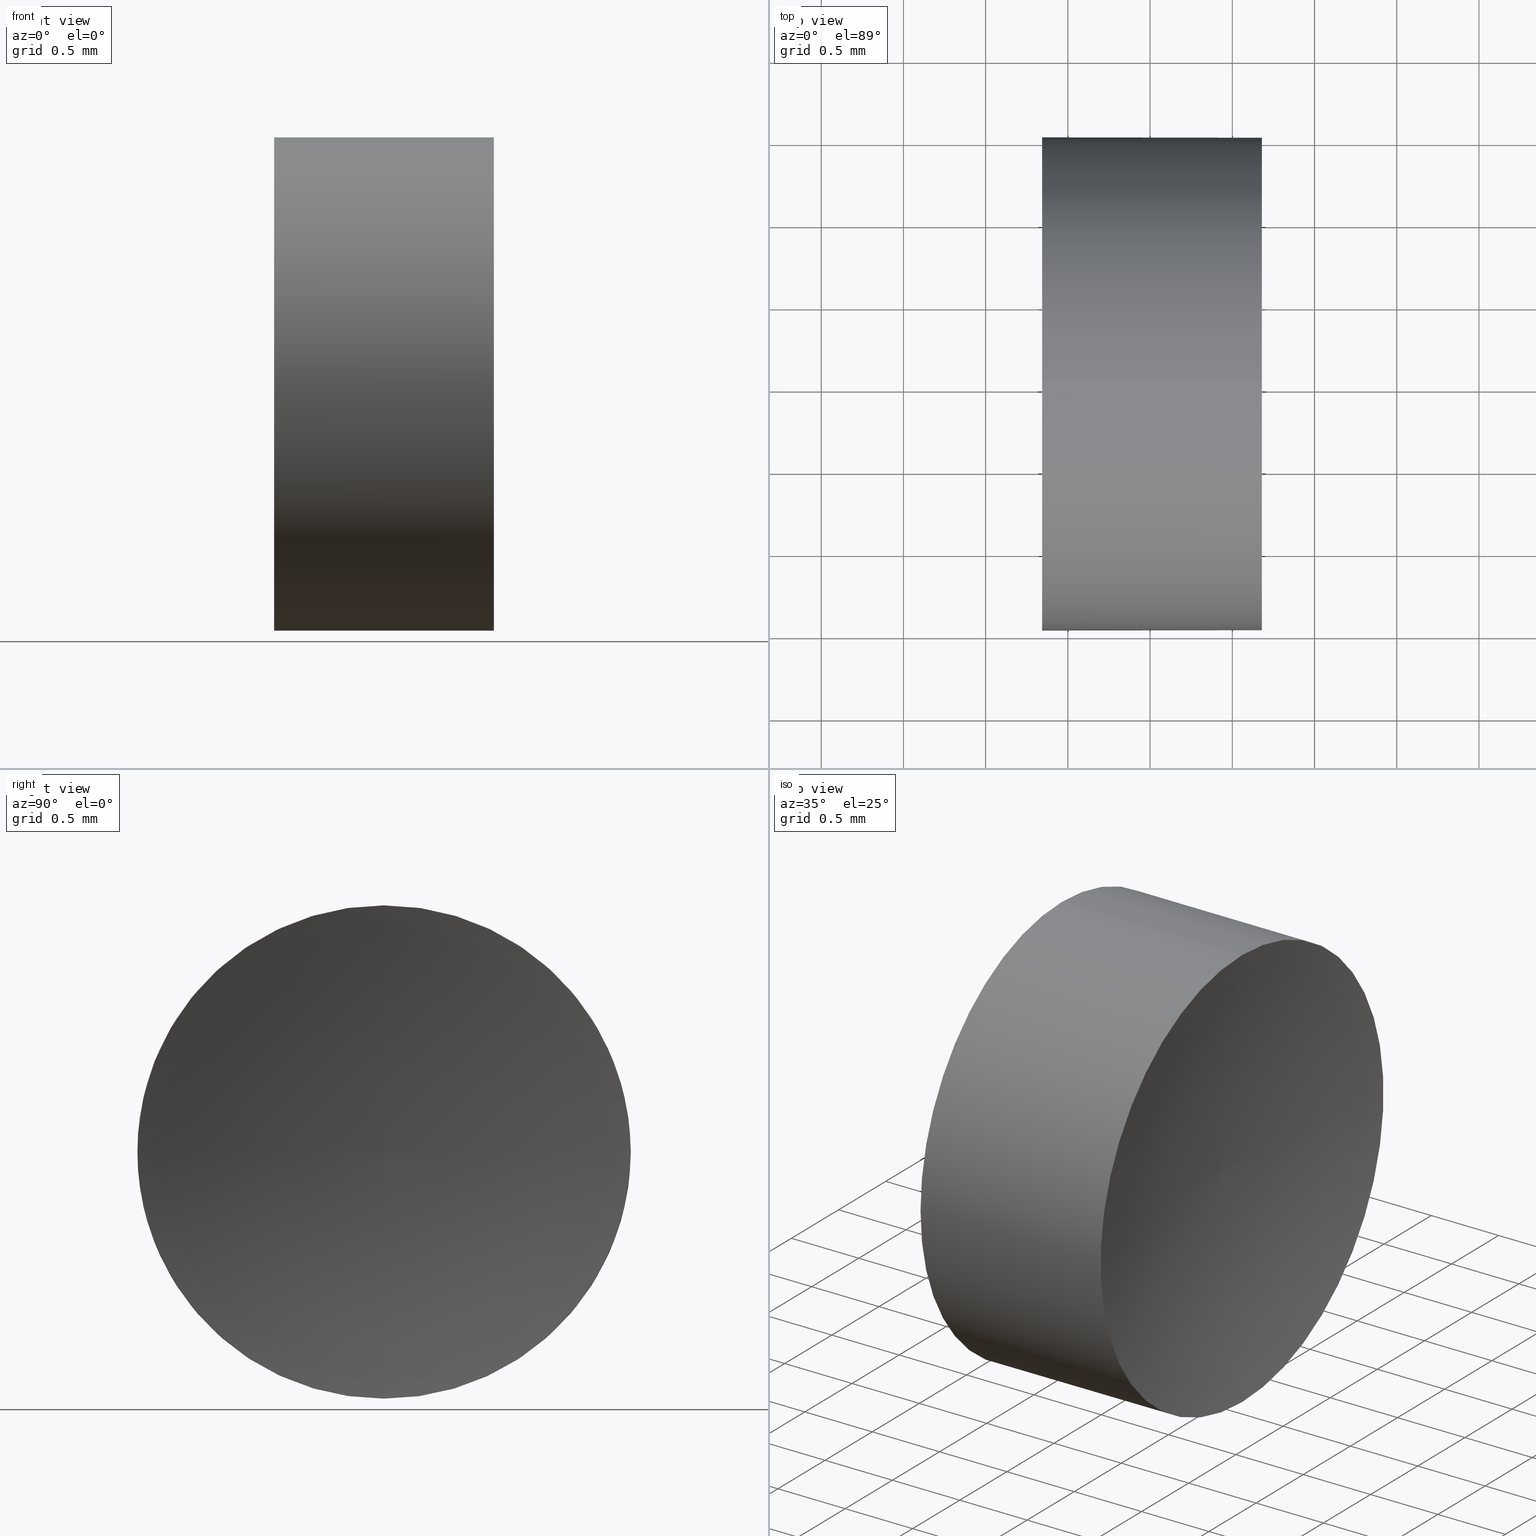
[diagram: canonical four-view strip — front | top / right | iso, engineering-drawing reading convention]
A machine part, canonical four-view strip (front | top / right | iso — engineering-drawing reading convention). The complete STEP part file that produces these views, byte-faithful:
ISO-10303-21;
HEADER;
FILE_DESCRIPTION (( 'STEP AP214' ),
    '1' );
FILE_NAME ('130003.STEP',
    '2019-06-28T05:45:34',
    ( '' ),
    ( '' ),
    'SwSTEP 2.0',
    'SolidWorks 2016',
    '' );
FILE_SCHEMA (( 'AUTOMOTIVE_DESIGN' ));
ENDSEC;

DATA;
#1 = ORIENTED_EDGE ( 'NONE', *, *, #15, .F. ) ;
#2 =( LENGTH_UNIT ( ) NAMED_UNIT ( * ) SI_UNIT ( .MILLI., .METRE. ) );
#3 = CIRCLE ( 'NONE', #198, 1.499999999999996900 ) ;
#4 = CARTESIAN_POINT ( 'NONE',  ( 10.61246527853420600, 6.522260287298739600, -1.499999999999998700 ) ) ;
#5 = DIRECTION ( 'NONE',  ( 0.0000000000000000000, 0.0000000000000000000, -1.000000000000000000 ) ) ;
#6 = CARTESIAN_POINT ( 'NONE',  ( 12.68015962421213900, 6.522260287298739600, 1.500000000000000200 ) ) ;
#7 = DIRECTION ( 'NONE',  ( 0.0000000000000000000, 0.0000000000000000000, 1.000000000000000000 ) ) ;
#8 = AXIS2_PLACEMENT_3D ( 'NONE', #103, #38, #139 ) ;
#9 = DIRECTION ( 'NONE',  ( -1.000000000000000000, -0.0000000000000000000, -0.0000000000000000000 ) ) ;
#10 = EDGE_CURVE ( 'NONE', #64, #173, #149, .T. ) ;
#11 = FILL_AREA_STYLE ('',( #207 ) ) ;
#12 = ORIENTED_EDGE ( 'NONE', *, *, #107, .F. ) ;
#13 = FACE_OUTER_BOUND ( 'NONE', #78, .T. ) ;
#14 = DIRECTION ( 'NONE',  ( -1.000000000000000000, -0.0000000000000000000, -0.0000000000000000000 ) ) ;
#15 = EDGE_CURVE ( 'NONE', #83, #65, #95, .T. ) ;
#16 = EDGE_LOOP ( 'NONE', ( #23, #75, #1 ) ) ;
#17 = AXIS2_PLACEMENT_3D ( 'NONE', #98, #39, #37 ) ;
#18 = MANIFOLD_SOLID_BREP ( '��ת1', #197 ) ;
#19 = ADVANCED_FACE ( 'NONE', ( #58 ), #131, .F. ) ;
#20 = DIRECTION ( 'NONE',  ( -1.000000000000000000, -0.0000000000000000000, -0.0000000000000000000 ) ) ;
#21 = CARTESIAN_POINT ( 'NONE',  ( 11.34326470139478900, 8.022260287298737000, 0.0000000000000000000 ) ) ;
#22 = DIRECTION ( 'NONE',  ( 0.0000000000000000000, 1.000000000000000000, 0.0000000000000000000 ) ) ;
#23 = ORIENTED_EDGE ( 'NONE', *, *, #34, .F. ) ;
#24 = DIRECTION ( 'NONE',  ( 0.0000000000000000000, 1.000000000000000000, 1.224646799147353200E-016 ) ) ;
#25 = CARTESIAN_POINT ( 'NONE',  ( 11.34326470139479100, 6.522260287298739600, 0.0000000000000000000 ) ) ;
#26 = DIRECTION ( 'NONE',  ( 1.000000000000000000, 0.0000000000000000000, 0.0000000000000000000 ) ) ;
#27 = ORIENTED_EDGE ( 'NONE', *, *, #10, .F. ) ;
#28 =( NAMED_UNIT ( * ) SI_UNIT ( $, .STERADIAN. ) SOLID_ANGLE_UNIT ( ) );
#29 = AXIS2_PLACEMENT_3D ( 'NONE', #110, #199, #195 ) ;
#30 = SURFACE_STYLE_FILL_AREA ( #11 ) ;
#31 = ORIENTED_EDGE ( 'NONE', *, *, #191, .T. ) ;
#32 = AXIS2_PLACEMENT_3D ( 'NONE', #59, #84, #205 ) ;
#33 = AXIS2_PLACEMENT_3D ( 'NONE', #161, #5, #140 ) ;
#34 = EDGE_CURVE ( 'NONE', #125, #83, #137, .T. ) ;
#35 = UNCERTAINTY_MEASURE_WITH_UNIT (LENGTH_MEASURE( 1.000000000000000100E-005 ), #2, 'distance_accuracy_value', 'NONE');
#36 = AXIS2_PLACEMENT_3D ( 'NONE', #50, #92, #128 ) ;
#37 = DIRECTION ( 'NONE',  ( 0.0000000000000000000, 0.0000000000000000000, 1.000000000000000000 ) ) ;
#38 = DIRECTION ( 'NONE',  ( -1.000000000000000000, -0.0000000000000000000, -0.0000000000000000000 ) ) ;
#39 = DIRECTION ( 'NONE',  ( -1.000000000000000000, -0.0000000000000000000, -0.0000000000000000000 ) ) ;
#40 = DIRECTION ( 'NONE',  ( -1.000000000000000000, -0.0000000000000000000, -0.0000000000000000000 ) ) ;
#41 = APPLICATION_CONTEXT ( 'automotive_design' ) ;
#42 =( LENGTH_UNIT ( ) NAMED_UNIT ( * ) SI_UNIT ( .MILLI., .METRE. ) );
#43 = ORIENTED_EDGE ( 'NONE', *, *, #193, .T. ) ;
#44 = STYLED_ITEM ( 'NONE', ( #206 ), #18 ) ;
#45 = CARTESIAN_POINT ( 'NONE',  ( 10.61246527853420600, 6.522260287298739600, 1.499999999999998700 ) ) ;
#46 = VECTOR ( 'NONE', #147, 1000.000000000000000 ) ;
#47 = ORIENTED_EDGE ( 'NONE', *, *, #107, .T. ) ;
#48 =( GEOMETRIC_REPRESENTATION_CONTEXT ( 3 ) GLOBAL_UNCERTAINTY_ASSIGNED_CONTEXT ( ( #212 ) ) GLOBAL_UNIT_ASSIGNED_CONTEXT ( ( #42, #163, #28 ) ) REPRESENTATION_CONTEXT ( 'NONE', 'WORKASPACE' ) );
#49 = CARTESIAN_POINT ( 'NONE',  ( 19.18408597058988400, 6.522260287298739600, 0.0000000000000000000 ) ) ;
#50 = CARTESIAN_POINT ( 'NONE',  ( 19.18408597058988400, 6.522260287298739600, 0.02086441429682405600 ) ) ;
#51 = VECTOR ( 'NONE', #138, 1000.000000000000000 ) ;
#52 = EDGE_LOOP ( 'NONE', ( #208, #31, #47, #165 ) ) ;
#53 = SURFACE_STYLE_USAGE ( .BOTH. , #80 ) ;
#54 = SPHERICAL_SURFACE ( 'NONE', #66, 6.669999999999999000 ) ;
#55 = DIRECTION ( 'NONE',  ( 0.0000000000000000000, 0.0000000000000000000, 1.000000000000000000 ) ) ;
#56 = EDGE_CURVE ( 'NONE', #123, #173, #105, .T. ) ;
#57 = SPHERICAL_SURFACE ( 'NONE', #33, 6.669999999999999000 ) ;
#58 = FACE_OUTER_BOUND ( 'NONE', #16, .T. ) ;
#59 = CARTESIAN_POINT ( 'NONE',  ( 19.18408597058988400, 6.522260287298739600, -0.02086441429682405600 ) ) ;
#60 = DIRECTION ( 'NONE',  ( 0.0000000000000000000, 0.0000000000000000000, -1.000000000000000000 ) ) ;
#61 =( NAMED_UNIT ( * ) SI_UNIT ( $, .STERADIAN. ) SOLID_ANGLE_UNIT ( ) );
#62 = EDGE_CURVE ( 'NONE', #125, #64, #74, .T. ) ;
#63 = MECHANICAL_DESIGN_GEOMETRIC_PRESENTATION_REPRESENTATION (  '', ( #44 ), #73 ) ;
#64 = VERTEX_POINT ( 'NONE', #177 ) ;
#65 = VERTEX_POINT ( 'NONE', #158 ) ;
#66 = AXIS2_PLACEMENT_3D ( 'NONE', #116, #60, #22 ) ;
#67 = ADVANCED_FACE ( 'NONE', ( #145 ), #187, .F. ) ;
#68 = DIRECTION ( 'NONE',  ( 0.0000000000000000000, 0.0000000000000000000, 1.000000000000000000 ) ) ;
#69 = ORIENTED_EDGE ( 'NONE', *, *, #191, .F. ) ;
#70 = CARTESIAN_POINT ( 'NONE',  ( 10.61246527853420600, 6.522260287298739600, 0.0000000000000000000 ) ) ;
#71 = CARTESIAN_POINT ( 'NONE',  ( 11.34326470139479100, 6.522260287298739600, 1.499999999999996900 ) ) ;
#72 = EDGE_LOOP ( 'NONE', ( #194, #118, #12, #210, #132 ) ) ;
#73 =( GEOMETRIC_REPRESENTATION_CONTEXT ( 3 ) GLOBAL_UNCERTAINTY_ASSIGNED_CONTEXT ( ( #35 ) ) GLOBAL_UNIT_ASSIGNED_CONTEXT ( ( #2, #133, #153 ) ) REPRESENTATION_CONTEXT ( 'NONE', 'WORKASPACE' ) );
#74 = LINE ( 'NONE', #4, #51 ) ;
#75 = ORIENTED_EDGE ( 'NONE', *, *, #130, .T. ) ;
#76 = ORIENTED_EDGE ( 'NONE', *, *, #15, .T. ) ;
#77 = FILL_AREA_STYLE_COLOUR ( '', #151 ) ;
#78 = EDGE_LOOP ( 'NONE', ( #176, #115, #111, #211, #27 ) ) ;
#79 = EDGE_CURVE ( 'NONE', #173, #168, #3, .T. ) ;
#80 = SURFACE_SIDE_STYLE ('',( #100 ) ) ;
#81 = ADVANCED_FACE ( 'NONE', ( #179 ), #127, .T. ) ;
#82 = FACE_OUTER_BOUND ( 'NONE', #52, .T. ) ;
#83 = VERTEX_POINT ( 'NONE', #6 ) ;
#84 = DIRECTION ( 'NONE',  ( -0.0000000000000000000, 1.000000000000000000, 1.224646799147353200E-016 ) ) ;
#85 = EDGE_CURVE ( 'NONE', #83, #125, #172, .T. ) ;
#86 = CARTESIAN_POINT ( 'NONE',  ( 11.34326470139478900, 5.022260287298740500, -1.836970198721027700E-016 ) ) ;
#87 = STYLED_ITEM ( 'NONE', ( #156 ), #178 ) ;
#88 = LINE ( 'NONE', #45, #46 ) ;
#89 =( NAMED_UNIT ( * ) PLANE_ANGLE_UNIT ( ) SI_UNIT ( $, .RADIAN. ) );
#90 = AXIS2_PLACEMENT_3D ( 'NONE', #154, #189, #175 ) ;
#91 = COLOUR_RGB ( '',1.000000000000000000, 1.000000000000000000, 1.000000000000000000 ) ;
#92 = DIRECTION ( 'NONE',  ( 0.0000000000000000000, -1.000000000000000000, 0.0000000000000000000 ) ) ;
#93 = FILL_AREA_STYLE ('',( #77 ) ) ;
#94 = CIRCLE ( 'NONE', #32, 6.670000000000000800 ) ;
#95 = CIRCLE ( 'NONE', #36, 6.670000000000000800 ) ;
#96 = PRESENTATION_LAYER_ASSIGNMENT (  '', '', ( #87 ) ) ;
#97 = CARTESIAN_POINT ( 'NONE',  ( 4.844118603637024700, 6.522260287298738700, 0.0000000000000000000 ) ) ;
#98 = CARTESIAN_POINT ( 'NONE',  ( 11.34326470139479100, 6.522260287298739600, 0.0000000000000000000 ) ) ;
#99 = CYLINDRICAL_SURFACE ( 'NONE', #113, 1.499999999999998700 ) ;
#100 = SURFACE_STYLE_FILL_AREA ( #93 ) ;
#101 = CARTESIAN_POINT ( 'NONE',  ( 11.51411860363702300, 6.522260287298738700, 0.0000000000000000000 ) ) ;
#102 = DIRECTION ( 'NONE',  ( 0.0000000000000000000, 0.0000000000000000000, 1.000000000000000000 ) ) ;
#103 = CARTESIAN_POINT ( 'NONE',  ( 19.18408597058988400, 6.522260287298739600, 0.0000000000000000000 ) ) ;
#104 = SURFACE_STYLE_USAGE ( .BOTH. , #162 ) ;
#105 = CIRCLE ( 'NONE', #186, 6.669999999999999000 ) ;
#106 = APPLICATION_CONTEXT ( 'automotive_design' ) ;
#107 = EDGE_CURVE ( 'NONE', #169, #64, #184, .T. ) ;
#108 = PRODUCT_DEFINITION_SHAPE ( 'NONE', 'NONE',  #183 ) ;
#109 = ORIENTED_EDGE ( 'NONE', *, *, #130, .F. ) ;
#110 = CARTESIAN_POINT ( 'NONE',  ( 11.34326470139479100, 6.522260287298739600, 0.0000000000000000000 ) ) ;
#111 = ORIENTED_EDGE ( 'NONE', *, *, #204, .T. ) ;
#112 = PRODUCT_RELATED_PRODUCT_CATEGORY ( 'part', '', ( #129 ) ) ;
#113 = AXIS2_PLACEMENT_3D ( 'NONE', #70, #185, #159 ) ;
#114 = CARTESIAN_POINT ( 'NONE',  ( 12.68015962421213900, 6.522260287298739600, -1.500000000000000200 ) ) ;
#115 = ORIENTED_EDGE ( 'NONE', *, *, #34, .T. ) ;
#116 = CARTESIAN_POINT ( 'NONE',  ( 4.844118603637024700, 6.522260287298738700, 0.0000000000000000000 ) ) ;
#117 = CARTESIAN_POINT ( 'NONE',  ( 11.34326470139479100, 6.522260287298739600, 0.0000000000000000000 ) ) ;
#118 = ORIENTED_EDGE ( 'NONE', *, *, #62, .T. ) ;
#119 = APPLICATION_PROTOCOL_DEFINITION ( 'draft international standard', 'automotive_design', 1998, #106 ) ;
#120 = MECHANICAL_DESIGN_GEOMETRIC_PRESENTATION_REPRESENTATION (  '', ( #87 ), #150 ) ;
#121 = APPLICATION_PROTOCOL_DEFINITION ( 'draft international standard', 'automotive_design', 1998, #41 ) ;
#122 = CIRCLE ( 'NONE', #126, 6.669999999999998200 ) ;
#123 = VERTEX_POINT ( 'NONE', #101 ) ;
#124 = CARTESIAN_POINT ( 'NONE',  ( 0.0000000000000000000, 0.0000000000000000000, 0.0000000000000000000 ) ) ;
#125 = VERTEX_POINT ( 'NONE', #114 ) ;
#126 = AXIS2_PLACEMENT_3D ( 'NONE', #97, #68, #26 ) ;
#127 = CYLINDRICAL_SURFACE ( 'NONE', #136, 1.499999999999998700 ) ;
#128 = DIRECTION ( 'NONE',  ( 0.0000000000000000000, 0.0000000000000000000, -1.000000000000000000 ) ) ;
#129 = PRODUCT ( '130003', '130003', '', ( #192 ) ) ;
#130 = EDGE_CURVE ( 'NONE', #125, #65, #94, .T. ) ;
#131 = TOROIDAL_SURFACE ( 'NONE', #155, 0.02086441429682405600, 6.670000000000000800 ) ;
#132 = ORIENTED_EDGE ( 'NONE', *, *, #204, .F. ) ;
#133 =( NAMED_UNIT ( * ) PLANE_ANGLE_UNIT ( ) SI_UNIT ( $, .RADIAN. ) );
#134 = UNCERTAINTY_MEASURE_WITH_UNIT (LENGTH_MEASURE( 1.000000000000000100E-005 ), #190, 'distance_accuracy_value', 'NONE');
#135 = ADVANCED_FACE ( 'NONE', ( #13 ), #99, .T. ) ;
#136 = AXIS2_PLACEMENT_3D ( 'NONE', #188, #9, #102 ) ;
#137 = CIRCLE ( 'NONE', #148, 1.500000000000000400 ) ;
#138 = DIRECTION ( 'NONE',  ( -1.000000000000000000, -0.0000000000000000000, -0.0000000000000000000 ) ) ;
#139 = DIRECTION ( 'NONE',  ( 0.0000000000000000000, 0.0000000000000000000, 1.000000000000000000 ) ) ;
#140 = DIRECTION ( 'NONE',  ( 0.0000000000000000000, 1.000000000000000000, 0.0000000000000000000 ) ) ;
#141 = DIRECTION ( 'NONE',  ( -1.000000000000000000, -0.0000000000000000000, -0.0000000000000000000 ) ) ;
#142 = EDGE_LOOP ( 'NONE', ( #109, #200, #76 ) ) ;
#143 = DIRECTION ( 'NONE',  ( 0.0000000000000000000, 0.0000000000000000000, 1.000000000000000000 ) ) ;
#144 = AXIS2_PLACEMENT_3D ( 'NONE', #117, #40, #143 ) ;
#145 = FACE_OUTER_BOUND ( 'NONE', #142, .T. ) ;
#146 = DIRECTION ( 'NONE',  ( 1.000000000000000000, 0.0000000000000000000, 0.0000000000000000000 ) ) ;
#147 = DIRECTION ( 'NONE',  ( -1.000000000000000000, -0.0000000000000000000, -0.0000000000000000000 ) ) ;
#148 = AXIS2_PLACEMENT_3D ( 'NONE', #170, #20, #55 ) ;
#149 = CIRCLE ( 'NONE', #29, 1.499999999999996900 ) ;
#150 =( GEOMETRIC_REPRESENTATION_CONTEXT ( 3 ) GLOBAL_UNCERTAINTY_ASSIGNED_CONTEXT ( ( #134 ) ) GLOBAL_UNIT_ASSIGNED_CONTEXT ( ( #190, #89, #61 ) ) REPRESENTATION_CONTEXT ( 'NONE', 'WORKASPACE' ) );
#151 = COLOUR_RGB ( '',1.000000000000000000, 1.000000000000000000, 1.000000000000000000 ) ;
#152 = PRESENTATION_LAYER_ASSIGNMENT (  '', '', ( #44 ) ) ;
#153 =( NAMED_UNIT ( * ) SI_UNIT ( $, .STERADIAN. ) SOLID_ANGLE_UNIT ( ) );
#154 = CARTESIAN_POINT ( 'NONE',  ( 12.68015962421213900, 6.522260287298739600, 0.0000000000000000000 ) ) ;
#155 = AXIS2_PLACEMENT_3D ( 'NONE', #49, #14, #201 ) ;
#156 = PRESENTATION_STYLE_ASSIGNMENT (( #104 ) ) ;
#157 = ORIENTED_EDGE ( 'NONE', *, *, #56, .T. ) ;
#158 = CARTESIAN_POINT ( 'NONE',  ( 12.51411860363702300, 6.522260287298739600, 0.0000000000000000000 ) ) ;
#159 = DIRECTION ( 'NONE',  ( 0.0000000000000000000, 0.0000000000000000000, 1.000000000000000000 ) ) ;
#160 = CARTESIAN_POINT ( 'NONE',  ( 4.844118603637024700, 6.522260287298738700, 0.0000000000000000000 ) ) ;
#161 = CARTESIAN_POINT ( 'NONE',  ( 4.844118603637024700, 6.522260287298738700, 0.0000000000000000000 ) ) ;
#162 = SURFACE_SIDE_STYLE ('',( #30 ) ) ;
#163 =( NAMED_UNIT ( * ) PLANE_ANGLE_UNIT ( ) SI_UNIT ( $, .RADIAN. ) );
#164 = CIRCLE ( 'NONE', #144, 1.499999999999996900 ) ;
#165 = ORIENTED_EDGE ( 'NONE', *, *, #10, .T. ) ;
#166 = EDGE_LOOP ( 'NONE', ( #69, #157, #181, #43 ) ) ;
#167 = PRODUCT_DEFINITION_CONTEXT ( 'detailed design', #106, 'design' ) ;
#168 = VERTEX_POINT ( 'NONE', #71 ) ;
#169 = VERTEX_POINT ( 'NONE', #21 ) ;
#170 = CARTESIAN_POINT ( 'NONE',  ( 12.68015962421213900, 6.522260287298739600, 0.0000000000000000000 ) ) ;
#171 = ADVANCED_FACE ( 'NONE', ( #196 ), #57, .F. ) ;
#172 = CIRCLE ( 'NONE', #90, 1.500000000000000400 ) ;
#173 = VERTEX_POINT ( 'NONE', #86 ) ;
#174 = DIRECTION ( 'NONE',  ( 0.0000000000000000000, 1.224646799147353200E-016, -1.000000000000000000 ) ) ;
#175 = DIRECTION ( 'NONE',  ( 0.0000000000000000000, 0.0000000000000000000, 1.000000000000000000 ) ) ;
#176 = ORIENTED_EDGE ( 'NONE', *, *, #62, .F. ) ;
#177 = CARTESIAN_POINT ( 'NONE',  ( 11.34326470139479100, 6.522260287298739600, -1.499999999999996900 ) ) ;
#178 = ADVANCED_BREP_SHAPE_REPRESENTATION ( '130003', ( #18, #180 ), #48 ) ;
#179 = FACE_OUTER_BOUND ( 'NONE', #72, .T. ) ;
#180 = AXIS2_PLACEMENT_3D ( 'NONE', #124, #209, #146 ) ;
#181 = ORIENTED_EDGE ( 'NONE', *, *, #79, .T. ) ;
#182 = SHAPE_DEFINITION_REPRESENTATION ( #108, #178 ) ;
#183 = PRODUCT_DEFINITION ( 'δ֪', '', #202, #167 ) ;
#184 = CIRCLE ( 'NONE', #17, 1.499999999999996900 ) ;
#185 = DIRECTION ( 'NONE',  ( -1.000000000000000000, -0.0000000000000000000, -0.0000000000000000000 ) ) ;
#186 = AXIS2_PLACEMENT_3D ( 'NONE', #160, #174, #24 ) ;
#187 = TOROIDAL_SURFACE ( 'NONE', #8, 0.02086441429682405600, 6.670000000000000800 ) ;
#188 = CARTESIAN_POINT ( 'NONE',  ( 10.61246527853420600, 6.522260287298739600, 0.0000000000000000000 ) ) ;
#189 = DIRECTION ( 'NONE',  ( -1.000000000000000000, -0.0000000000000000000, -0.0000000000000000000 ) ) ;
#190 =( LENGTH_UNIT ( ) NAMED_UNIT ( * ) SI_UNIT ( .MILLI., .METRE. ) );
#191 = EDGE_CURVE ( 'NONE', #123, #169, #122, .T. ) ;
#192 = PRODUCT_CONTEXT ( 'NONE', #41, 'mechanical' ) ;
#193 = EDGE_CURVE ( 'NONE', #168, #169, #164, .T. ) ;
#194 = ORIENTED_EDGE ( 'NONE', *, *, #85, .T. ) ;
#195 = DIRECTION ( 'NONE',  ( 0.0000000000000000000, 0.0000000000000000000, 1.000000000000000000 ) ) ;
#196 = FACE_OUTER_BOUND ( 'NONE', #166, .T. ) ;
#197 = CLOSED_SHELL ( 'NONE', ( #171, #81, #19, #67, #135, #203 ) ) ;
#198 = AXIS2_PLACEMENT_3D ( 'NONE', #25, #141, #7 ) ;
#199 = DIRECTION ( 'NONE',  ( -1.000000000000000000, -0.0000000000000000000, -0.0000000000000000000 ) ) ;
#200 = ORIENTED_EDGE ( 'NONE', *, *, #85, .F. ) ;
#201 = DIRECTION ( 'NONE',  ( 0.0000000000000000000, 0.0000000000000000000, 1.000000000000000000 ) ) ;
#202 = PRODUCT_DEFINITION_FORMATION_WITH_SPECIFIED_SOURCE ( '�κ�', '', #129, .NOT_KNOWN. ) ;
#203 = ADVANCED_FACE ( 'NONE', ( #82 ), #54, .F. ) ;
#204 = EDGE_CURVE ( 'NONE', #83, #168, #88, .T. ) ;
#205 = DIRECTION ( 'NONE',  ( 0.0000000000000000000, -1.300392410777216600E-016, 1.000000000000000000 ) ) ;
#206 = PRESENTATION_STYLE_ASSIGNMENT (( #53 ) ) ;
#207 = FILL_AREA_STYLE_COLOUR ( '', #91 ) ;
#208 = ORIENTED_EDGE ( 'NONE', *, *, #56, .F. ) ;
#209 = DIRECTION ( 'NONE',  ( 0.0000000000000000000, 0.0000000000000000000, 1.000000000000000000 ) ) ;
#210 = ORIENTED_EDGE ( 'NONE', *, *, #193, .F. ) ;
#211 = ORIENTED_EDGE ( 'NONE', *, *, #79, .F. ) ;
#212 = UNCERTAINTY_MEASURE_WITH_UNIT (LENGTH_MEASURE( 1.000000000000000100E-005 ), #42, 'distance_accuracy_value', 'NONE');
ENDSEC;
END-ISO-10303-21;
